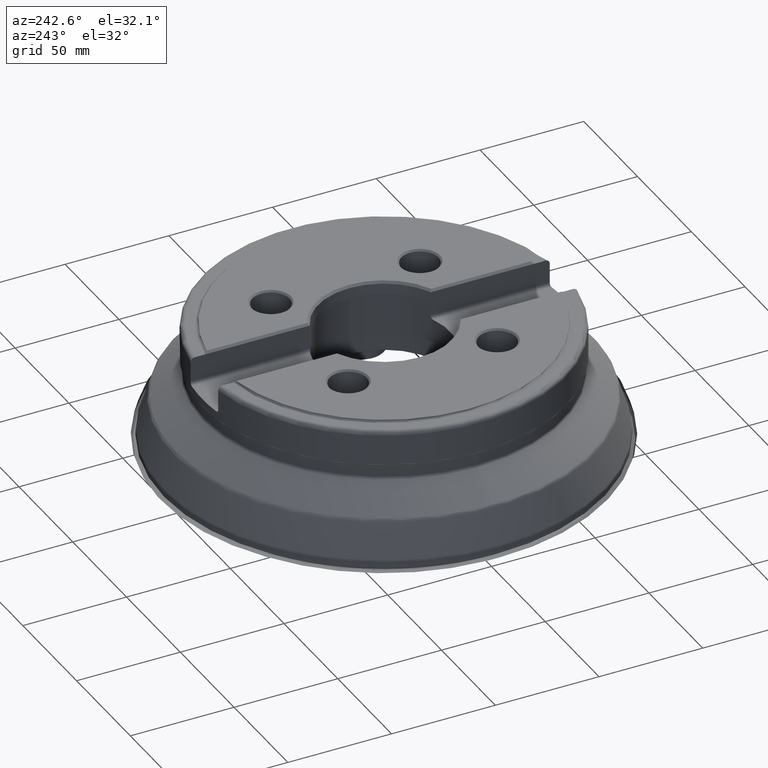
[diagram: clean part render]
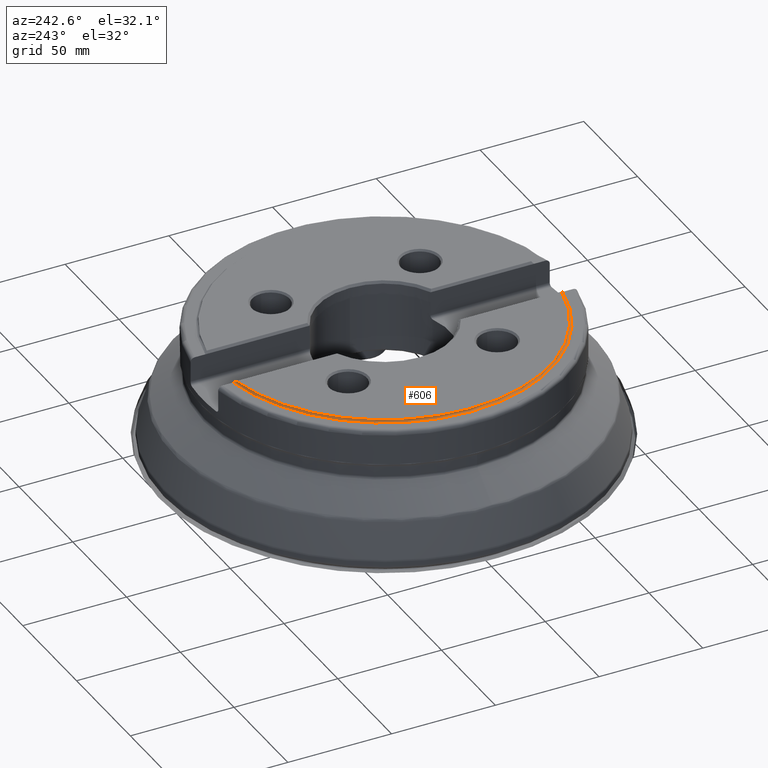
[diagram: same view with one face highlighted and labeled with its STEP entity id]
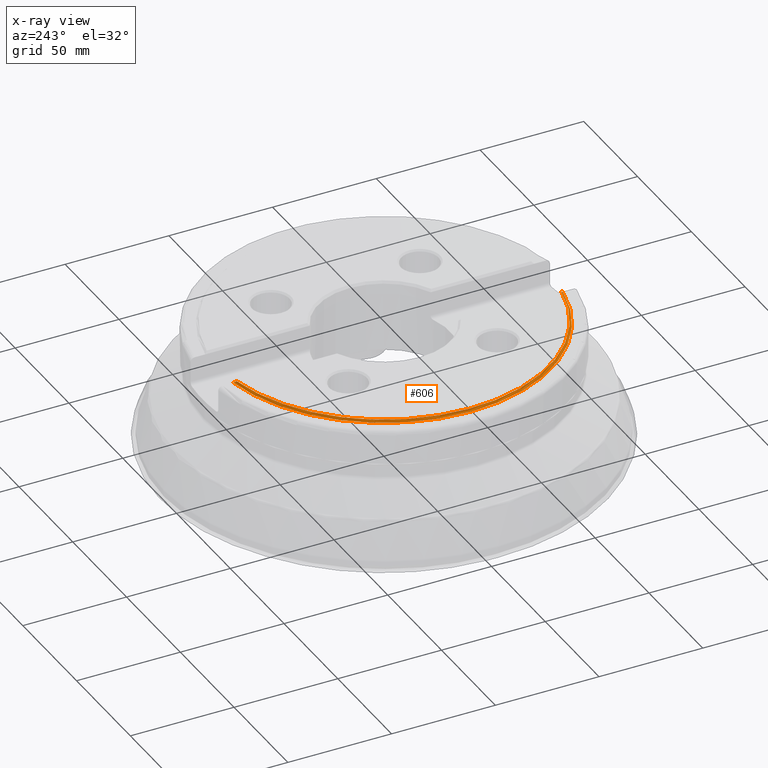
[diagram: x-ray of the same camera — body ghosted, the highlighted face saturated]
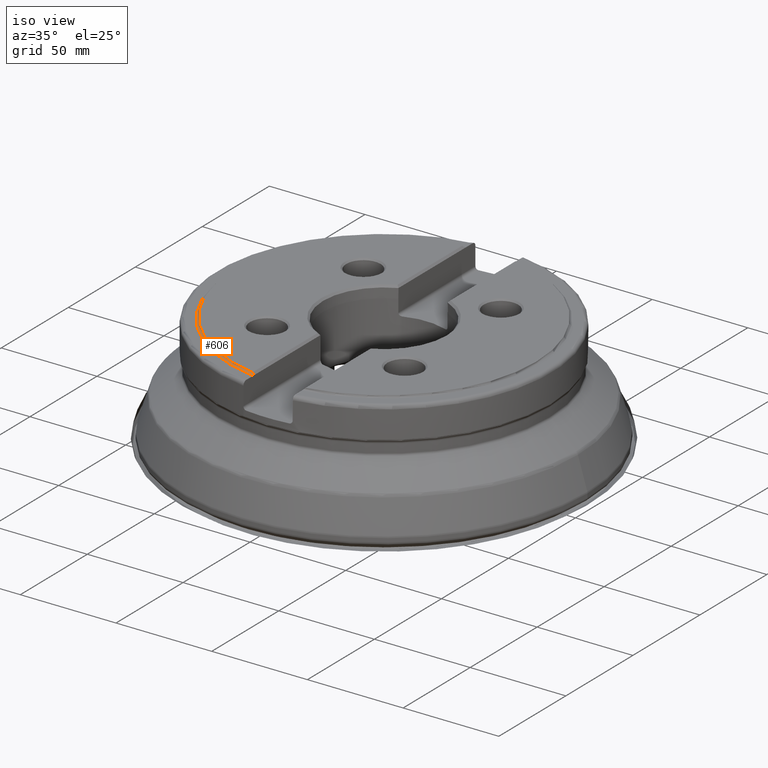
[diagram: same view with one face highlighted and labeled with its STEP entity id]
A machine part, auxiliary view. The second image highlights one B-rep face of the part: STEP entity #606.
The next image is the same camera in x-ray: the body ghosted, the highlighted face saturated — about 0% of this face is hidden behind the body in this view.
A second angle (iso view) of the same face is appended — the face is thin or edge-on in the first view.
In plain terms, the highlighted toroidal blend (fillet) surface has major radius 80.5 mm and minor (blend) radius 1 mm.
Its self-contained STEP definition (entity closure, byte-faithful):
#173=TOROIDAL_SURFACE('',#2661,80.5,1.);
#281=FACE_OUTER_BOUND('',#971,.T.);
#606=ADVANCED_FACE('',(#281),#173,.F.);
#971=EDGE_LOOP('',(#1275,#1276,#1277,#1278));
#1275=ORIENTED_EDGE('',*,*,#2072,.F.);
#1276=ORIENTED_EDGE('',*,*,#2095,.T.);
#1277=ORIENTED_EDGE('',*,*,#2096,.F.);
#1278=ORIENTED_EDGE('',*,*,#2097,.T.);
#1830=VERTEX_POINT('',#3979);
#1836=VERTEX_POINT('',#4017);
#1867=VERTEX_POINT('',#4238);
#1868=VERTEX_POINT('',#4240);
#2072=EDGE_CURVE('',#1830,#1836,#2351,.T.);
#2095=EDGE_CURVE('',#1830,#1867,#2557,.T.);
#2096=EDGE_CURVE('',#1868,#1867,#2370,.T.);
#2097=EDGE_CURVE('',#1868,#1836,#2558,.T.);
#2351=CIRCLE('',#2631,80.5);
#2370=CIRCLE('',#2660,79.5);
#2557=B_SPLINE_CURVE_WITH_KNOTS('',3,(#4222,#4223,#4224,#4225,#4226,#4227,
#4228,#4229,#4230,#4231,#4232,#4233,#4234,#4235,#4236,#4237),
 .UNSPECIFIED.,.F.,.F.,(4,3,3,3,3,4),(0.,0.149191352784633,0.296458872784844,
0.532720456249515,0.856430601934696,1.),.UNSPECIFIED.);
#2558=B_SPLINE_CURVE_WITH_KNOTS('',3,(#4241,#4242,#4243,#4244,#4245,#4246,
#4247,#4248,#4249,#4250,#4251,#4252,#4253,#4254,#4255,#4256),
 .UNSPECIFIED.,.F.,.F.,(4,3,3,3,3,4),(0.,0.351403999307481,0.616377207378056,
0.800721066373446,0.941551313620727,1.),.UNSPECIFIED.);
#2631=AXIS2_PLACEMENT_3D('',#4110,#3000,#3001);
#2660=AXIS2_PLACEMENT_3D('',#4239,#3058,#3059);
#2661=AXIS2_PLACEMENT_3D('',#4257,#3060,#3061);
#3000=DIRECTION('',(-1.17145536458252E-15,0.,-1.));
#3001=DIRECTION('',(-1.,0.,1.20676415720126E-15));
#3058=DIRECTION('',(1.17145536458252E-15,0.,1.));
#3059=DIRECTION('',(-1.,0.,1.22194358056228E-15));
#3060=DIRECTION('',(-1.17145536458252E-15,0.,-1.));
#3061=DIRECTION('',(-1.,0.,1.19195723502701E-15));
#3979=CARTESIAN_POINT('',(-12.8499999999999,-79.4677764883352,62.4999999999996));
#4017=CARTESIAN_POINT('',(-12.8499999999999,79.4677764883352,62.4999999999999));
#4110=CARTESIAN_POINT('',(7.32159602864076E-14,0.,62.4999999999999));
#4222=CARTESIAN_POINT('',(-12.8499999999999,-79.4677764883352,62.4999999999996));
#4223=CARTESIAN_POINT('',(-12.8499999999999,-79.3689318403594,62.4999999999996));
#4224=CARTESIAN_POINT('',(-12.8648400240999,-79.2688410701811,62.5148400240999));
#4225=CARTESIAN_POINT('',(-12.890239788263,-79.1767543263231,62.5402397882631));
#4226=CARTESIAN_POINT('',(-12.9154413460369,-79.0853861789402,62.5654413460369));
#4227=CARTESIAN_POINT('',(-12.9513506454689,-78.9992068666607,62.601350645469));
#4228=CARTESIAN_POINT('',(-12.993521205638,-78.9213501836161,62.643521205638));
#4229=CARTESIAN_POINT('',(-13.0607900737194,-78.7971561743359,62.7107900737194));
#4230=CARTESIAN_POINT('',(-13.1455927225006,-78.6903937228593,62.7955927225007));
#4231=CARTESIAN_POINT('',(-13.2372805440263,-78.6028663560831,62.8872805440263));
#4232=CARTESIAN_POINT('',(-13.362525009795,-78.4833050216593,63.0125250097951));
#4233=CARTESIAN_POINT('',(-13.5047253827928,-78.3952175103572,63.1547253827928));
#4234=CARTESIAN_POINT('',(-13.6506373597121,-78.339659836868,63.3006373597122));
#4235=CARTESIAN_POINT('',(-13.7160329142286,-78.3147597228254,63.3660329142286));
#4236=CARTESIAN_POINT('',(-13.7827994689359,-78.2961627160648,63.4327994689359));
#4237=CARTESIAN_POINT('',(-13.8499999999998,-78.2842736442001,63.4999999999999));
#4238=CARTESIAN_POINT('',(-13.8499999999998,-78.2842736442001,63.4999999999999));
#4239=CARTESIAN_POINT('',(7.43874156509901E-14,0.,63.4999999999999));
#4240=CARTESIAN_POINT('',(-13.8499999999998,78.2842736442001,63.4999999999999));
#4241=CARTESIAN_POINT('',(-13.8499999999998,78.2842736442001,63.4999999999999));
#4242=CARTESIAN_POINT('',(-13.6873606075699,78.3130476939587,63.3373606075699));
#4243=CARTESIAN_POINT('',(-13.5257280060751,78.3812947740694,63.1757280060752));
#4244=CARTESIAN_POINT('',(-13.3793132773752,78.4854895163501,63.0293132773752));
#4245=CARTESIAN_POINT('',(-13.268502824092,78.5643467920105,62.9185028240921));
#4246=CARTESIAN_POINT('',(-13.1635681143212,78.6659515881425,62.8135681143212));
#4247=CARTESIAN_POINT('',(-13.0756157301115,78.7896655294018,62.7256157301116));
#4248=CARTESIAN_POINT('',(-13.0142289652796,78.8760122349148,62.6642289652796));
#4249=CARTESIAN_POINT('',(-12.9599372623201,78.9751548331795,62.6099372623202));
#4250=CARTESIAN_POINT('',(-12.9200642206445,79.0838410992901,62.5700642206445));
#4251=CARTESIAN_POINT('',(-12.8895555341201,79.1670019288363,62.5395555341201));
#4252=CARTESIAN_POINT('',(-12.8670168114569,79.2576740522658,62.517016811457));
#4253=CARTESIAN_POINT('',(-12.8566347692623,79.3502035604101,62.5066347692623));
#4254=CARTESIAN_POINT('',(-12.8522779713317,79.3890333360976,62.5022779713318));
#4255=CARTESIAN_POINT('',(-12.8499999999992,79.4284609080093,62.4999999999992));
#4256=CARTESIAN_POINT('',(-12.8499999999992,79.4677764883351,62.4999999999992));
#4257=CARTESIAN_POINT('',(7.43874156509901E-14,0.,63.4999999999999));